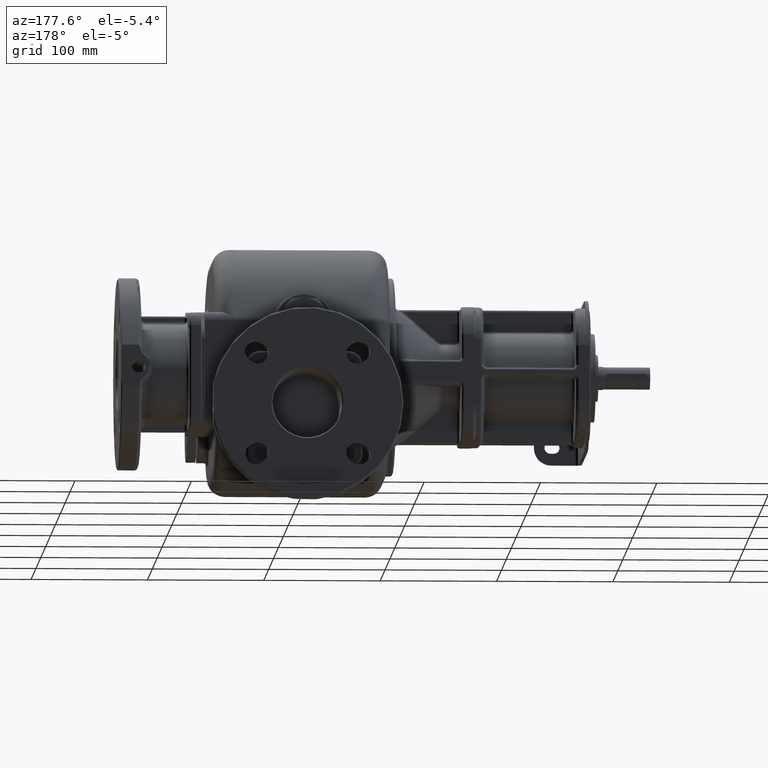
[diagram: clean part render]
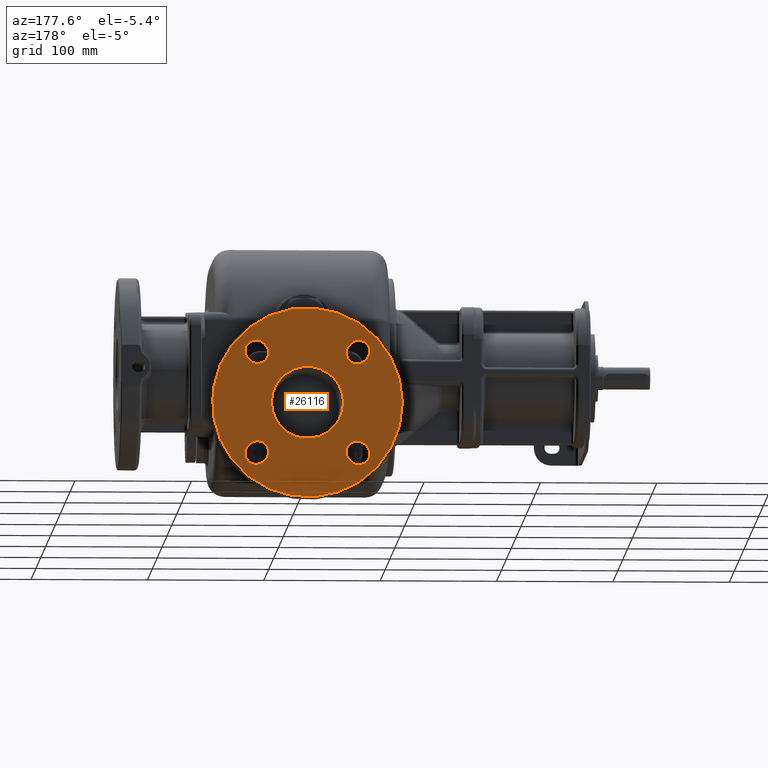
[diagram: same view with one face highlighted and labeled with its STEP entity id]
A machine part, auxiliary view. The second image highlights one B-rep face of the part: STEP entity #26116.
In plain terms, the highlighted planar face has unit normal (0, 1, 0).
Its self-contained STEP definition (entity closure, byte-faithful):
#6177=CARTESIAN_POINT('',(-1.E1,3.57E2,-4.5E1));
#6178=DIRECTION('',(0.E0,1.E0,0.E0));
#6179=DIRECTION('',(9.877300613497E-1,0.E0,-1.561708228387E-1));
#6180=AXIS2_PLACEMENT_3D('',#6177,#6178,#6179);
#6203=DIRECTION('',(0.E0,0.E0,1.E0));
#6204=VECTOR('',#6203,2.545584412272E1);
#6205=CARTESIAN_POINT('',(7.05E1,3.57E2,-5.772792206136E1));
#6206=LINE('',#6205,#6204);
#6207=CARTESIAN_POINT('',(-1.E1,3.57E2,-4.5E1));
#6208=DIRECTION('',(0.E0,1.E0,0.E0));
#6209=DIRECTION('',(1.E0,0.E0,0.E0));
#6210=AXIS2_PLACEMENT_3D('',#6207,#6208,#6209);
#6212=CARTESIAN_POINT('',(-1.E1,3.57E2,-4.5E1));
#6213=DIRECTION('',(0.E0,1.E0,0.E0));
#6214=DIRECTION('',(-1.E0,0.E0,0.E0));
#6215=AXIS2_PLACEMENT_3D('',#6212,#6213,#6214);
#6217=DIRECTION('',(7.071067811865E-1,0.E0,7.071067811865E-1));
#6218=VECTOR('',#6217,2.E0);
#6219=CARTESIAN_POINT('',(2.606244584051E1,3.57E2,4.497474683058E0));
#6220=LINE('',#6219,#6218);
#6221=CARTESIAN_POINT('',(3.419417382416E1,3.57E2,-8.058261758408E-1));
#6222=DIRECTION('',(0.E0,1.E0,0.E0));
#6223=DIRECTION('',(-7.071067811866E-1,0.E0,7.071067811865E-1));
#6224=AXIS2_PLACEMENT_3D('',#6221,#6222,#6223);
#6226=DIRECTION('',(-7.071067811865E-1,0.E0,-7.071067811865E-1));
#6227=VECTOR('',#6226,2.E0);
#6228=CARTESIAN_POINT('',(4.091168824543E1,3.57E2,-7.523340597113E0));
#6229=LINE('',#6228,#6227);
#6230=CARTESIAN_POINT('',(3.277996026179E1,3.57E2,-2.220039738214E0));
#6231=DIRECTION('',(0.E0,1.E0,0.E0));
#6232=DIRECTION('',(7.071067811865E-1,0.E0,-7.071067811866E-1));
#6233=AXIS2_PLACEMENT_3D('',#6230,#6231,#6232);
#6235=DIRECTION('',(7.071067811865E-1,0.E0,-7.071067811865E-1));
#6236=VECTOR('',#6235,2.E0);
#6237=CARTESIAN_POINT('',(3.949747468306E1,3.57E2,-8.106244584051E1));
#6238=LINE('',#6237,#6236);
#6239=CARTESIAN_POINT('',(3.419417382416E1,3.57E2,-8.919417382416E1));
#6240=DIRECTION('',(0.E0,1.E0,0.E0));
#6241=DIRECTION('',(7.071067811865E-1,0.E0,7.071067811866E-1));
#6242=AXIS2_PLACEMENT_3D('',#6239,#6240,#6241);
#6244=DIRECTION('',(-7.071067811865E-1,0.E0,7.071067811865E-1));
#6245=VECTOR('',#6244,2.E0);
#6246=CARTESIAN_POINT('',(2.747665940289E1,3.57E2,-9.591168824543E1));
#6247=LINE('',#6246,#6245);
#6248=CARTESIAN_POINT('',(3.277996026179E1,3.57E2,-8.777996026179E1));
#6249=DIRECTION('',(0.E0,1.E0,0.E0));
#6250=DIRECTION('',(-7.071067811866E-1,0.E0,-7.071067811865E-1));
#6251=AXIS2_PLACEMENT_3D('',#6248,#6249,#6250);
#6253=DIRECTION('',(-7.071067811865E-1,0.E0,-7.071067811865E-1));
#6254=VECTOR('',#6253,2.E0);
#6255=CARTESIAN_POINT('',(-4.606244584051E1,3.57E2,-9.449747468306E1));
#6256=LINE('',#6255,#6254);
#6257=CARTESIAN_POINT('',(-5.419417382416E1,3.57E2,-8.919417382416E1));
#6258=DIRECTION('',(0.E0,1.E0,0.E0));
#6259=DIRECTION('',(7.071067811865E-1,0.E0,-7.071067811865E-1));
#6260=AXIS2_PLACEMENT_3D('',#6257,#6258,#6259);
#6262=DIRECTION('',(7.071067811865E-1,0.E0,7.071067811865E-1));
#6263=VECTOR('',#6262,2.E0);
#6264=CARTESIAN_POINT('',(-6.091168824543E1,3.57E2,-8.247665940289E1));
#6265=LINE('',#6264,#6263);
#6266=CARTESIAN_POINT('',(-5.277996026179E1,3.57E2,-8.777996026179E1));
#6267=DIRECTION('',(0.E0,1.E0,0.E0));
#6268=DIRECTION('',(-7.071067811865E-1,0.E0,7.071067811866E-1));
#6269=AXIS2_PLACEMENT_3D('',#6266,#6267,#6268);
#6271=DIRECTION('',(-7.071067811865E-1,0.E0,7.071067811865E-1));
#6272=VECTOR('',#6271,2.E0);
#6273=CARTESIAN_POINT('',(-5.949747468306E1,3.57E2,-8.937554159486E0));
#6274=LINE('',#6273,#6272);
#6275=CARTESIAN_POINT('',(-5.419417382416E1,3.57E2,-8.058261758408E-1));
#6276=DIRECTION('',(0.E0,1.E0,0.E0));
#6277=DIRECTION('',(-7.071067811865E-1,0.E0,-7.071067811865E-1));
#6278=AXIS2_PLACEMENT_3D('',#6275,#6276,#6277);
#6280=DIRECTION('',(7.071067811865E-1,0.E0,-7.071067811865E-1));
#6281=VECTOR('',#6280,2.E0);
#6282=CARTESIAN_POINT('',(-4.747665940289E1,3.57E2,5.911688245431E0));
#6283=LINE('',#6282,#6281);
#6284=CARTESIAN_POINT('',(-5.277996026179E1,3.57E2,-2.220039738214E0));
#6285=DIRECTION('',(0.E0,1.E0,0.E0));
#6286=DIRECTION('',(7.071067811866E-1,0.E0,7.071067811865E-1));
#6287=AXIS2_PLACEMENT_3D('',#6284,#6285,#6286);
#16286=CARTESIAN_POINT('',(2.606244584051E1,3.57E2,4.497474683058E0));
#16287=CARTESIAN_POINT('',(2.747665940289E1,3.57E2,5.911688245431E0));
#16288=VERTEX_POINT('',#16286);
#16289=VERTEX_POINT('',#16287);
#16290=CARTESIAN_POINT('',(4.091168824543E1,3.57E2,-7.523340597113E0));
#16291=VERTEX_POINT('',#16290);
#16292=CARTESIAN_POINT('',(3.949747468306E1,3.57E2,-8.937554159486E0));
#16293=VERTEX_POINT('',#16292);
#16302=CARTESIAN_POINT('',(3.949747468306E1,3.57E2,-8.106244584051E1));
#16303=CARTESIAN_POINT('',(4.091168824543E1,3.57E2,-8.247665940289E1));
#16304=VERTEX_POINT('',#16302);
#16305=VERTEX_POINT('',#16303);
#16306=CARTESIAN_POINT('',(2.747665940289E1,3.57E2,-9.591168824543E1));
#16307=VERTEX_POINT('',#16306);
#16308=CARTESIAN_POINT('',(2.606244584051E1,3.57E2,-9.449747468306E1));
#16309=VERTEX_POINT('',#16308);
#16318=CARTESIAN_POINT('',(-4.606244584051E1,3.57E2,-9.449747468306E1));
#16319=CARTESIAN_POINT('',(-4.747665940289E1,3.57E2,-9.591168824543E1));
#16320=VERTEX_POINT('',#16318);
#16321=VERTEX_POINT('',#16319);
#16322=CARTESIAN_POINT('',(-6.091168824543E1,3.57E2,-8.247665940289E1));
#16323=VERTEX_POINT('',#16322);
#16324=CARTESIAN_POINT('',(-5.949747468306E1,3.57E2,-8.106244584051E1));
#16325=VERTEX_POINT('',#16324);
#16334=CARTESIAN_POINT('',(-5.949747468306E1,3.57E2,-8.937554159486E0));
#16335=CARTESIAN_POINT('',(-6.091168824543E1,3.57E2,-7.523340597113E0));
#16336=VERTEX_POINT('',#16334);
#16337=VERTEX_POINT('',#16335);
#16338=CARTESIAN_POINT('',(-4.747665940289E1,3.57E2,5.911688245431E0));
#16339=VERTEX_POINT('',#16338);
#16340=CARTESIAN_POINT('',(-4.606244584051E1,3.57E2,4.497474683058E0));
#16341=VERTEX_POINT('',#16340);
#16350=CARTESIAN_POINT('',(7.05E1,3.57E2,-5.772792206136E1));
#16351=CARTESIAN_POINT('',(7.05E1,3.57E2,-3.227207793864E1));
#16352=VERTEX_POINT('',#16350);
#16353=VERTEX_POINT('',#16351);
#16540=CARTESIAN_POINT('',(2.1E1,3.57E2,-4.5E1));
#16541=CARTESIAN_POINT('',(-4.1E1,3.57E2,-4.5E1));
#16542=VERTEX_POINT('',#16540);
#16543=VERTEX_POINT('',#16541);
#26061=CARTESIAN_POINT('',(-1.E1,3.57E2,-4.5E1));
#26062=DIRECTION('',(0.E0,1.E0,0.E0));
#26063=DIRECTION('',(-1.E0,0.E0,0.E0));
#26064=AXIS2_PLACEMENT_3D('',#26061,#26062,#26063);
#26065=PLANE('',#26064);
#26066=ORIENTED_EDGE('',*,*,#26036,.T.);
#26067=ORIENTED_EDGE('',*,*,#26052,.F.);
#26068=EDGE_LOOP('',(#26066,#26067));
#26069=FACE_OUTER_BOUND('',#26068,.F.);
#26071=ORIENTED_EDGE('',*,*,#26070,.T.);
#26073=ORIENTED_EDGE('',*,*,#26072,.T.);
#26074=EDGE_LOOP('',(#26071,#26073));
#26075=FACE_BOUND('',#26074,.F.);
#26077=ORIENTED_EDGE('',*,*,#26076,.T.);
#26079=ORIENTED_EDGE('',*,*,#26078,.T.);
#26081=ORIENTED_EDGE('',*,*,#26080,.T.);
#26083=ORIENTED_EDGE('',*,*,#26082,.T.);
#26084=EDGE_LOOP('',(#26077,#26079,#26081,#26083));
#26085=FACE_BOUND('',#26084,.F.);
#26087=ORIENTED_EDGE('',*,*,#26086,.T.);
#26089=ORIENTED_EDGE('',*,*,#26088,.T.);
#26091=ORIENTED_EDGE('',*,*,#26090,.T.);
#26093=ORIENTED_EDGE('',*,*,#26092,.T.);
#26094=EDGE_LOOP('',(#26087,#26089,#26091,#26093));
#26095=FACE_BOUND('',#26094,.F.);
#26097=ORIENTED_EDGE('',*,*,#26096,.T.);
#26099=ORIENTED_EDGE('',*,*,#26098,.T.);
#26101=ORIENTED_EDGE('',*,*,#26100,.T.);
#26103=ORIENTED_EDGE('',*,*,#26102,.T.);
#26104=EDGE_LOOP('',(#26097,#26099,#26101,#26103));
#26105=FACE_BOUND('',#26104,.F.);
#26107=ORIENTED_EDGE('',*,*,#26106,.T.);
#26109=ORIENTED_EDGE('',*,*,#26108,.T.);
#26111=ORIENTED_EDGE('',*,*,#26110,.T.);
#26113=ORIENTED_EDGE('',*,*,#26112,.T.);
#26114=EDGE_LOOP('',(#26107,#26109,#26111,#26113));
#26115=FACE_BOUND('',#26114,.F.);
#26116=ADVANCED_FACE('',(#26069,#26075,#26085,#26095,#26105,#26115),#26065,.T.);
#6181=CIRCLE('',#6180,8.15E1);
#6211=CIRCLE('',#6210,3.1E1);
#6216=CIRCLE('',#6215,3.1E1);
#6225=CIRCLE('',#6224,9.5E0);
#6234=CIRCLE('',#6233,9.5E0);
#6243=CIRCLE('',#6242,9.5E0);
#6252=CIRCLE('',#6251,9.5E0);
#6261=CIRCLE('',#6260,9.5E0);
#6270=CIRCLE('',#6269,9.5E0);
#6279=CIRCLE('',#6278,9.5E0);
#6288=CIRCLE('',#6287,9.5E0);
#26036=EDGE_CURVE('',#16352,#16353,#6206,.T.);
#26052=EDGE_CURVE('',#16352,#16353,#6181,.T.);
#26070=EDGE_CURVE('',#16542,#16543,#6211,.T.);
#26072=EDGE_CURVE('',#16543,#16542,#6216,.T.);
#26076=EDGE_CURVE('',#16288,#16289,#6220,.T.);
#26078=EDGE_CURVE('',#16289,#16291,#6225,.T.);
#26080=EDGE_CURVE('',#16291,#16293,#6229,.T.);
#26082=EDGE_CURVE('',#16293,#16288,#6234,.T.);
#26086=EDGE_CURVE('',#16304,#16305,#6238,.T.);
#26088=EDGE_CURVE('',#16305,#16307,#6243,.T.);
#26090=EDGE_CURVE('',#16307,#16309,#6247,.T.);
#26092=EDGE_CURVE('',#16309,#16304,#6252,.T.);
#26096=EDGE_CURVE('',#16320,#16321,#6256,.T.);
#26098=EDGE_CURVE('',#16321,#16323,#6261,.T.);
#26100=EDGE_CURVE('',#16323,#16325,#6265,.T.);
#26102=EDGE_CURVE('',#16325,#16320,#6270,.T.);
#26106=EDGE_CURVE('',#16336,#16337,#6274,.T.);
#26108=EDGE_CURVE('',#16337,#16339,#6279,.T.);
#26110=EDGE_CURVE('',#16339,#16341,#6283,.T.);
#26112=EDGE_CURVE('',#16341,#16336,#6288,.T.);